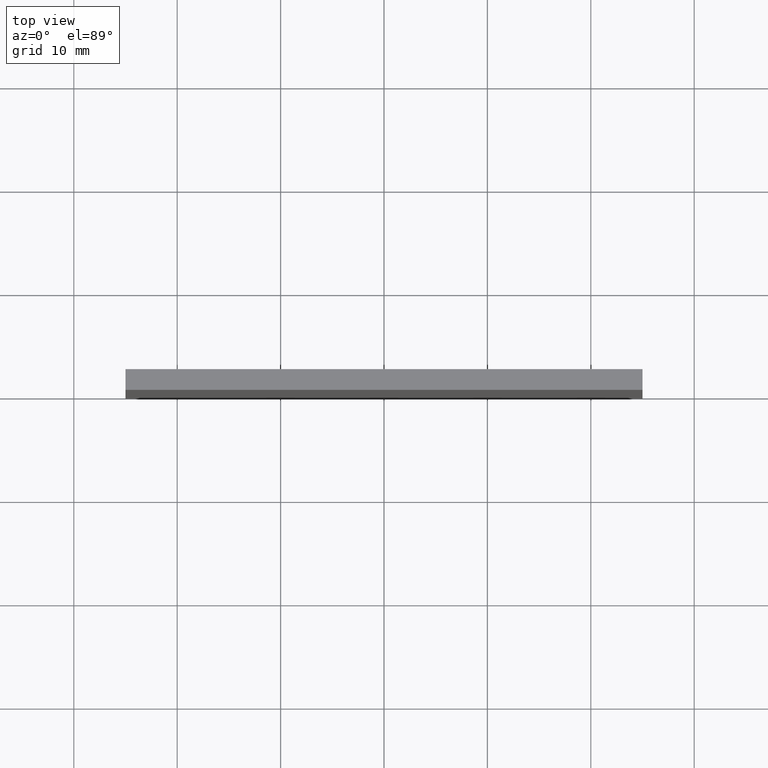
[diagram: clean part render]
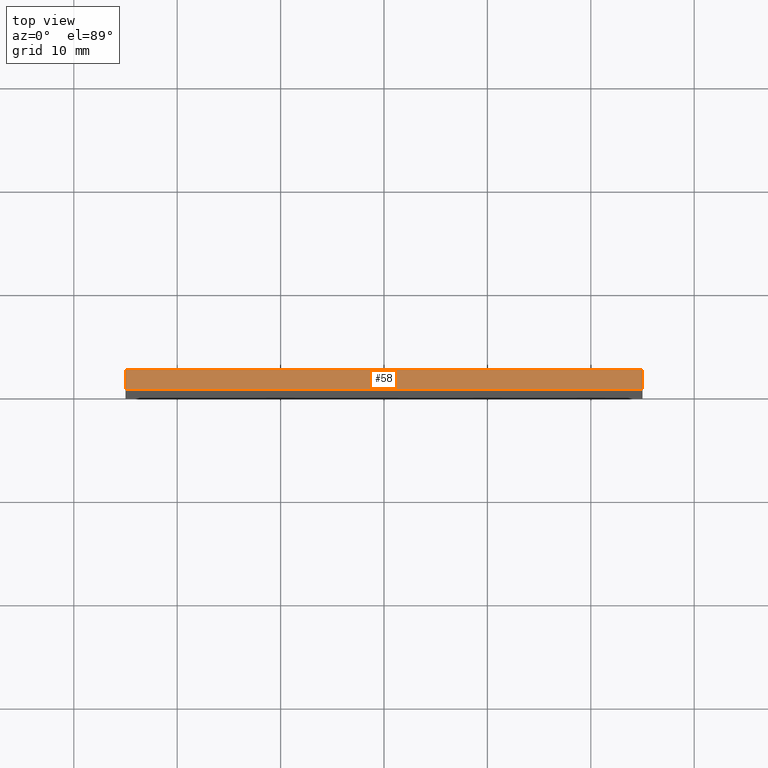
[diagram: same view with one face highlighted and labeled with its STEP entity id]
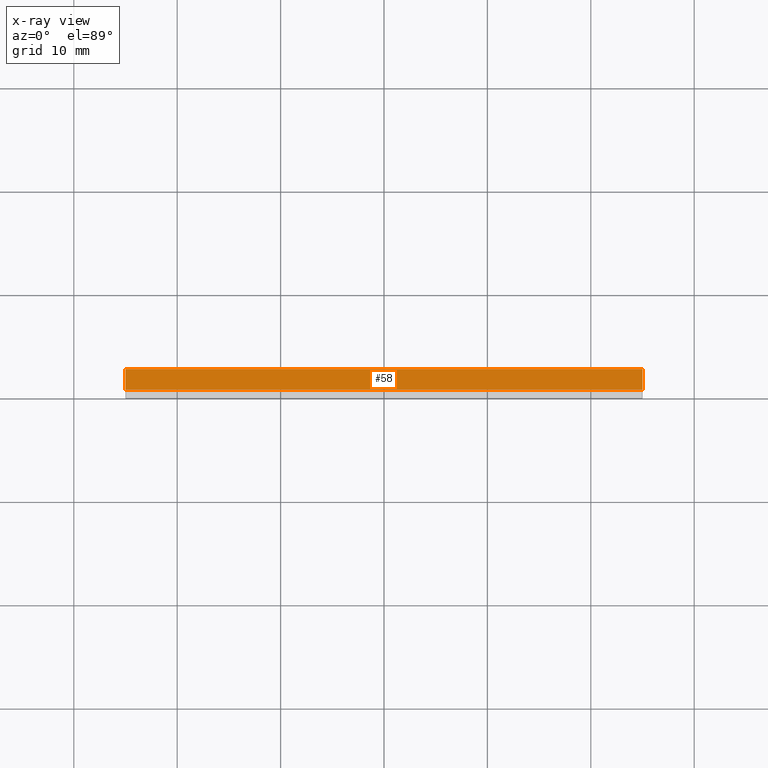
[diagram: x-ray of the same camera — body ghosted, the highlighted face saturated]
A machine part, top view. The second image highlights one B-rep face of the part: STEP entity #58.
The next image is the same camera in x-ray: the body ghosted, the highlighted face saturated — about 0% of this face is hidden behind the body in this view.
In plain terms, the highlighted planar face has unit normal (0, 0, -1).
Its self-contained STEP definition (entity closure, byte-faithful):
#8 = DIRECTION ( 'NONE',  ( -1.000000000000000000, 0.0000000000000000000, -0.0000000000000000000 ) ) ;
#19 = FACE_OUTER_BOUND ( 'NONE', #124, .T. ) ;
#37 = VECTOR ( 'NONE', #184, 1000.000000000000000 ) ;
#42 = CARTESIAN_POINT ( 'NONE',  ( 25.00000000000000000, 2.000000000000000000, 25.00000000000000000 ) ) ;
#43 = CARTESIAN_POINT ( 'NONE',  ( -25.00000000000000000, 2.000000000000000000, 25.00000000000000000 ) ) ;
#47 = ORIENTED_EDGE ( 'NONE', *, *, #167, .T. ) ;
#50 = CARTESIAN_POINT ( 'NONE',  ( 25.00000000000000000, 2.000000000000000000, 25.00000000000000000 ) ) ;
#56 = VERTEX_POINT ( 'NONE', #176 ) ;
#58 = ADVANCED_FACE ( 'NONE', ( #19 ), #145, .F. ) ;
#59 = CARTESIAN_POINT ( 'NONE',  ( -25.00000000000000000, 2.000000000000000000, 25.00000000000000000 ) ) ;
#62 = EDGE_CURVE ( 'NONE', #73, #74, #199, .T. ) ;
#63 = CARTESIAN_POINT ( 'NONE',  ( -25.00000000000000000, 2.000000000000000000, 25.00000000000000000 ) ) ;
#69 = DIRECTION ( 'NONE',  ( -0.0000000000000000000, -1.000000000000000000, -0.0000000000000000000 ) ) ;
#73 = VERTEX_POINT ( 'NONE', #59 ) ;
#74 = VERTEX_POINT ( 'NONE', #42 ) ;
#75 = DIRECTION ( 'NONE',  ( 1.000000000000000000, 0.0000000000000000000, 0.0000000000000000000 ) ) ;
#94 = ORIENTED_EDGE ( 'NONE', *, *, #62, .F. ) ;
#98 = VECTOR ( 'NONE', #69, 1000.000000000000000 ) ;
#109 = LINE ( 'NONE', #202, #37 ) ;
#115 = DIRECTION ( 'NONE',  ( 0.0000000000000000000, 0.0000000000000000000, -1.000000000000000000 ) ) ;
#120 = DIRECTION ( 'NONE',  ( -0.0000000000000000000, -1.000000000000000000, -0.0000000000000000000 ) ) ;
#121 = VERTEX_POINT ( 'NONE', #126 ) ;
#124 = EDGE_LOOP ( 'NONE', ( #47, #153, #94, #200 ) ) ;
#126 = CARTESIAN_POINT ( 'NONE',  ( -25.00000000000000000, 0.0000000000000000000, 25.00000000000000000 ) ) ;
#135 = LINE ( 'NONE', #63, #98 ) ;
#140 = VECTOR ( 'NONE', #120, 1000.000000000000000 ) ;
#145 = PLANE ( 'NONE',  #190 ) ;
#147 = EDGE_CURVE ( 'NONE', #73, #121, #135, .T. ) ;
#153 = ORIENTED_EDGE ( 'NONE', *, *, #159, .F. ) ;
#159 = EDGE_CURVE ( 'NONE', #74, #56, #187, .T. ) ;
#167 = EDGE_CURVE ( 'NONE', #121, #56, #109, .T. ) ;
#174 = CARTESIAN_POINT ( 'NONE',  ( -25.00000000000000000, 2.000000000000000000, 25.00000000000000000 ) ) ;
#176 = CARTESIAN_POINT ( 'NONE',  ( 25.00000000000000000, 0.0000000000000000000, 25.00000000000000000 ) ) ;
#184 = DIRECTION ( 'NONE',  ( 1.000000000000000000, 0.0000000000000000000, 0.0000000000000000000 ) ) ;
#187 = LINE ( 'NONE', #50, #140 ) ;
#190 = AXIS2_PLACEMENT_3D ( 'NONE', #43, #115, #8 ) ;
#192 = VECTOR ( 'NONE', #75, 1000.000000000000000 ) ;
#199 = LINE ( 'NONE', #174, #192 ) ;
#200 = ORIENTED_EDGE ( 'NONE', *, *, #147, .T. ) ;
#202 = CARTESIAN_POINT ( 'NONE',  ( -25.00000000000000000, 0.0000000000000000000, 25.00000000000000000 ) ) ;